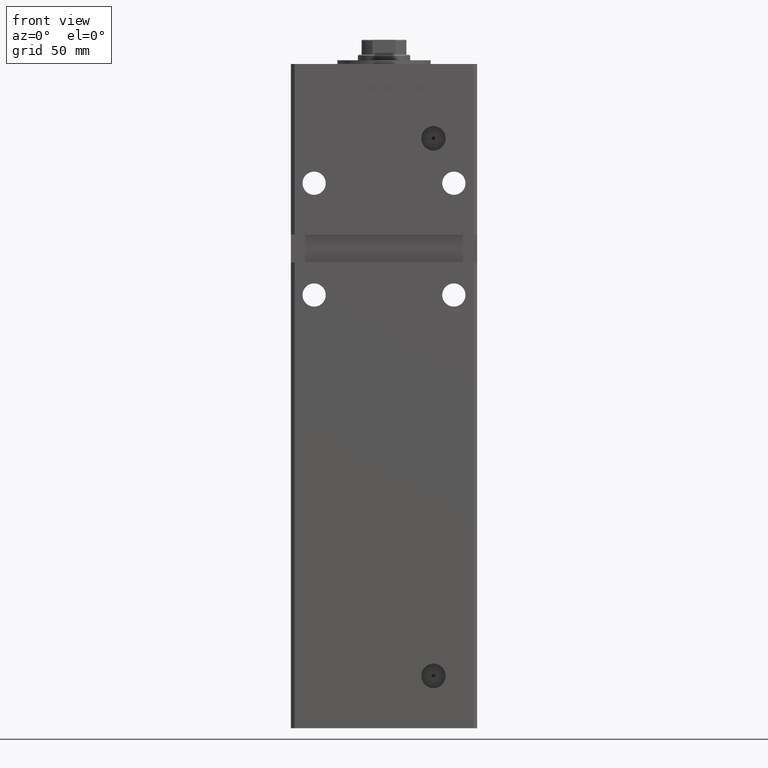
[diagram: clean part render]
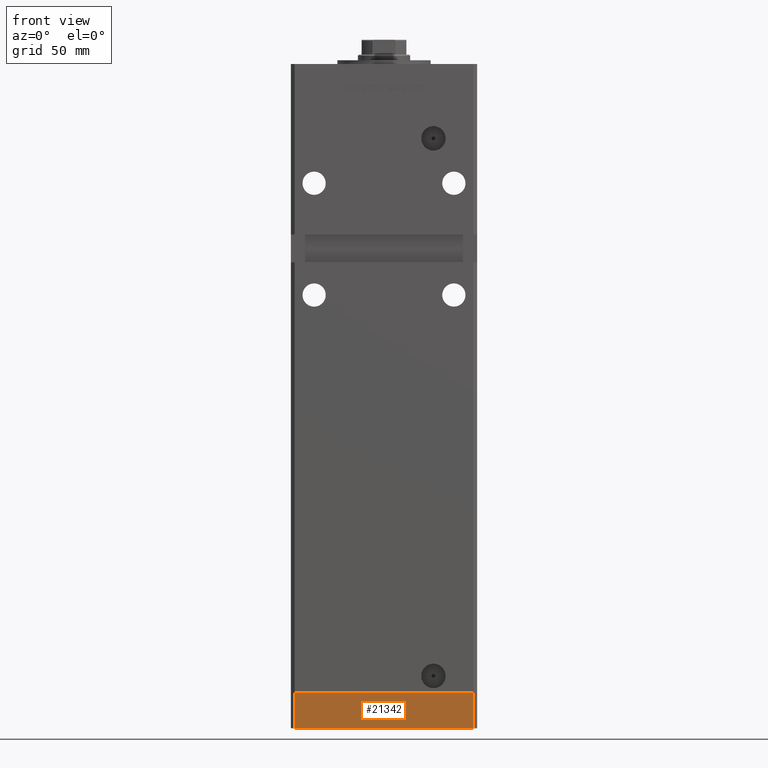
[diagram: same view with one face highlighted and labeled with its STEP entity id]
A machine part, front view. The second image highlights one B-rep face of the part: STEP entity #21342.
In plain terms, the highlighted planar face has unit normal (0, -1, -0).
Its self-contained STEP definition (entity closure, byte-faithful):
#3014 = CARTESIAN_POINT ( 'NONE',  ( -47.99999999999999289, -43.50000000000001421, -19.00000000000000000 ) ) ;
#7718 = DIRECTION ( 'NONE',  ( 0.000000000000000000, -1.000000000000000000, 0.000000000000000000 ) ) ;
#10277 = CARTESIAN_POINT ( 'NONE',  ( 47.99999999999999289, -43.50000000000001421, -19.00000000000000000 ) ) ;
#11751 = CARTESIAN_POINT ( 'NONE',  ( -47.99999999999999289, -43.50000000000001421, -19.00000000000000000 ) ) ;
#13192 = CARTESIAN_POINT ( 'NONE',  ( -47.99999999999999289, -43.50000000000001421, -19.00000000000000000 ) ) ;
#13700 = CARTESIAN_POINT ( 'NONE',  ( -47.99999999999999289, -43.50000000000001421, 0.000000000000000000 ) ) ;
#14139 = EDGE_CURVE ( 'NONE', #29710, #33937, #50004, .T. ) ;
#15092 = ORIENTED_EDGE ( 'NONE', *, *, #51216, .T. ) ;
#17190 = VECTOR ( 'NONE', #35206, 1000.000000000000000 ) ;
#18867 = AXIS2_PLACEMENT_3D ( 'NONE', #11751, #7718, #40475 ) ;
#19258 = VERTEX_POINT ( 'NONE', #29650 ) ;
#21342 = ADVANCED_FACE ( 'NONE', ( #32161 ), #48557, .T. ) ;
#22170 = VECTOR ( 'NONE', #30366, 1000.000000000000000 ) ;
#24144 = VECTOR ( 'NONE', #38403, 1000.000000000000000 ) ;
#25412 = CARTESIAN_POINT ( 'NONE',  ( 47.99999999999999289, -43.50000000000001421, -19.00000000000000000 ) ) ;
#26732 = EDGE_LOOP ( 'NONE', ( #45662, #37708, #29347, #15092 ) ) ;
#27506 = EDGE_CURVE ( 'NONE', #28868, #19258, #50522, .T. ) ;
#28868 = VERTEX_POINT ( 'NONE', #32515 ) ;
#29347 = ORIENTED_EDGE ( 'NONE', *, *, #14139, .T. ) ;
#29650 = CARTESIAN_POINT ( 'NONE',  ( 47.99999999999999289, -43.50000000000001421, 0.000000000000000000 ) ) ;
#29710 = VERTEX_POINT ( 'NONE', #3014 ) ;
#30366 = DIRECTION ( 'NONE',  ( 1.000000000000000000, 0.000000000000000000, 0.000000000000000000 ) ) ;
#32161 = FACE_OUTER_BOUND ( 'NONE', #26732, .T. ) ;
#32515 = CARTESIAN_POINT ( 'NONE',  ( -47.99999999999999289, -43.50000000000001421, 0.000000000000000000 ) ) ;
#33937 = VERTEX_POINT ( 'NONE', #25412 ) ;
#34978 = DIRECTION ( 'NONE',  ( 0.000000000000000000, 0.000000000000000000, 1.000000000000000000 ) ) ;
#35206 = DIRECTION ( 'NONE',  ( 0.000000000000000000, 0.000000000000000000, 1.000000000000000000 ) ) ;
#37708 = ORIENTED_EDGE ( 'NONE', *, *, #44870, .F. ) ;
#38403 = DIRECTION ( 'NONE',  ( 1.000000000000000000, 0.000000000000000000, 0.000000000000000000 ) ) ;
#40475 = DIRECTION ( 'NONE',  ( 0.000000000000000000, -0.000000000000000000, -1.000000000000000000 ) ) ;
#42280 = VECTOR ( 'NONE', #34978, 1000.000000000000000 ) ;
#43533 = LINE ( 'NONE', #47577, #17190 ) ;
#44870 = EDGE_CURVE ( 'NONE', #29710, #28868, #43533, .T. ) ;
#45662 = ORIENTED_EDGE ( 'NONE', *, *, #27506, .F. ) ;
#47077 = LINE ( 'NONE', #10277, #42280 ) ;
#47577 = CARTESIAN_POINT ( 'NONE',  ( -47.99999999999999289, -43.50000000000001421, -19.00000000000000000 ) ) ;
#48557 = PLANE ( 'NONE',  #18867 ) ;
#50004 = LINE ( 'NONE', #13192, #22170 ) ;
#50522 = LINE ( 'NONE', #13700, #24144 ) ;
#51216 = EDGE_CURVE ( 'NONE', #33937, #19258, #47077, .T. ) ;